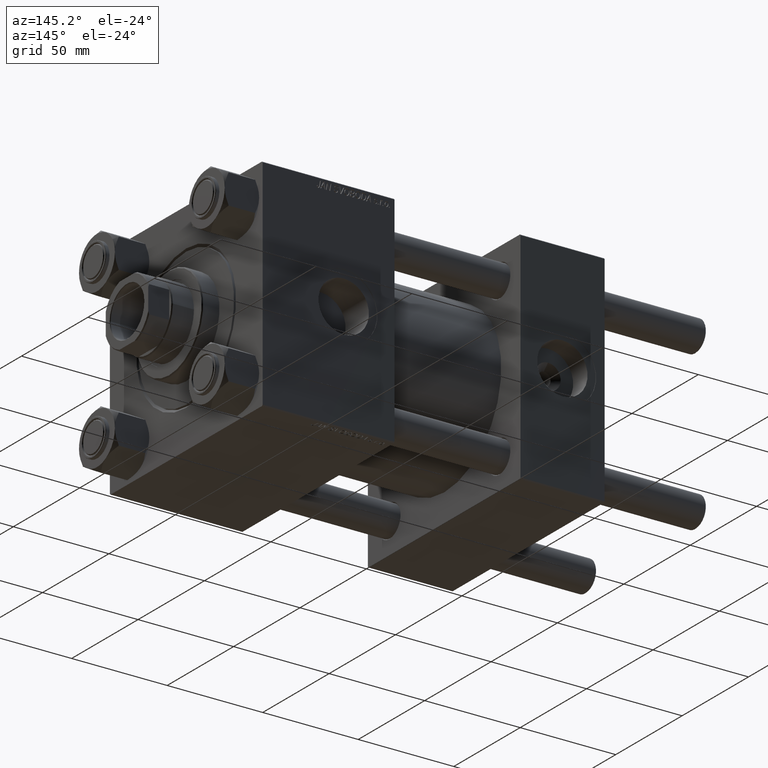
[diagram: clean part render]
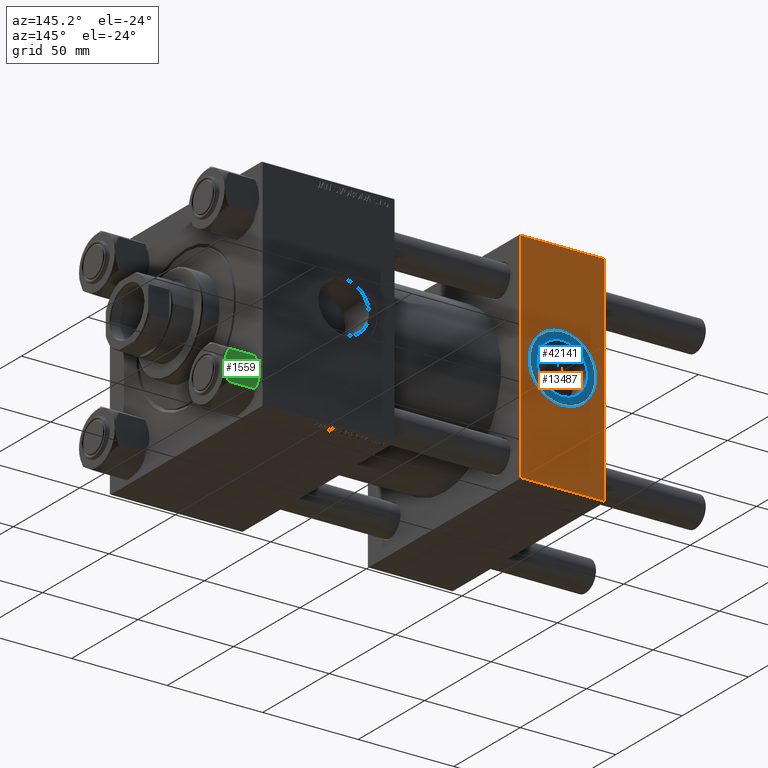
[diagram: same view with three faces highlighted in distinct colors, each labeled with its STEP entity id]
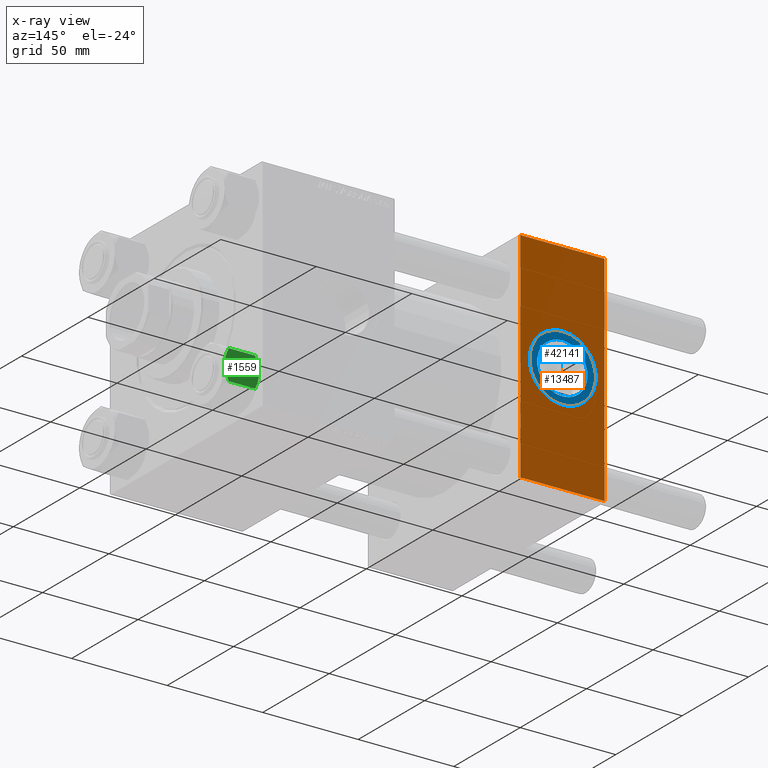
[diagram: x-ray of the same camera — body ghosted, the three highlighted faces saturated]
A machine part, auxiliary view with three faces highlighted in distinct colors.
The next image is the same camera in x-ray (body ghosted, the three faces saturated) — at least one of them is partly hidden behind the body in this view.
Their STEP definitions:

[orange] entity #13487 — the highlighted planar face has unit normal (0, 1, 0).
#1448 = CARTESIAN_POINT ( 'NONE',  ( 44.00000000000000000, 57.49999999999999289, 57.00000000000003553 ) ) ;
#4044 = VERTEX_POINT ( 'NONE', #20174 ) ;
#4495 = VERTEX_POINT ( 'NONE', #31535 ) ;
#4513 = EDGE_LOOP ( 'NONE', ( #37246, #43380, #35196, #29970 ) ) ;
#5715 = CARTESIAN_POINT ( 'NONE',  ( 0.000000000000000000, 57.49999999999999289, 57.50000000000000711 ) ) ;
#5972 = VERTEX_POINT ( 'NONE', #36749 ) ;
#6396 = DIRECTION ( 'NONE',  ( 0.000000000000000000, 1.000000000000000000, 0.000000000000000000 ) ) ;
#6906 = VECTOR ( 'NONE', #20481, 1000.000000000000000 ) ;
#7237 = FACE_BOUND ( 'NONE', #33035, .T. ) ;
#8779 = VECTOR ( 'NONE', #33948, 1000.000000000000000 ) ;
#10498 = CIRCLE ( 'NONE', #41300, 17.50000000000000000 ) ;
#11827 = PLANE ( 'NONE',  #47312 ) ;
#13487 = ADVANCED_FACE ( 'NONE', ( #7237, #38224 ), #11827, .T. ) ;
#13926 = DIRECTION ( 'NONE',  ( 0.000000000000000000, 1.000000000000000000, 0.000000000000000000 ) ) ;
#14295 = CARTESIAN_POINT ( 'NONE',  ( 22.00000000000000000, 57.49999999999999289, 0.000000000000000000 ) ) ;
#15733 = EDGE_CURVE ( 'NONE', #46090, #4044, #23782, .T. ) ;
#17840 = EDGE_CURVE ( 'NONE', #5972, #36426, #25424, .T. ) ;
#18685 = DIRECTION ( 'NONE',  ( 0.000000000000000000, -0.000000000000000000, 1.000000000000000000 ) ) ;
#19737 = CARTESIAN_POINT ( 'NONE',  ( 44.00000000000000000, 57.49999999999999289, 57.50000000000000711 ) ) ;
#20174 = CARTESIAN_POINT ( 'NONE',  ( 0.000000000000000000, 57.49999999999999289, -57.00000000000000711 ) ) ;
#20481 = DIRECTION ( 'NONE',  ( 0.000000000000000000, 0.000000000000000000, -1.000000000000000000 ) ) ;
#20973 = LINE ( 'NONE', #5715, #21126 ) ;
#21126 = VECTOR ( 'NONE', #24795, 1000.000000000000000 ) ;
#21296 = CARTESIAN_POINT ( 'NONE',  ( 44.00000000000000000, 57.49999999999999289, -57.00000000000000711 ) ) ;
#23782 = LINE ( 'NONE', #27100, #41571 ) ;
#24045 = EDGE_CURVE ( 'NONE', #30013, #46090, #46880, .T. ) ;
#24795 = DIRECTION ( 'NONE',  ( 0.000000000000000000, 0.000000000000000000, -1.000000000000000000 ) ) ;
#25424 = CIRCLE ( 'NONE', #29469, 17.50000000000000000 ) ;
#27100 = CARTESIAN_POINT ( 'NONE',  ( 44.00000000000000000, 57.49999999999999289, -57.00000000000000711 ) ) ;
#27324 = CARTESIAN_POINT ( 'NONE',  ( 44.00000000000000000, 57.49999999999999289, 57.50000000000000711 ) ) ;
#27571 = DIRECTION ( 'NONE',  ( -0.000000000000000000, 1.000000000000000000, 0.000000000000000000 ) ) ;
#29401 = DIRECTION ( 'NONE',  ( 0.000000000000000000, 0.000000000000000000, 1.000000000000000000 ) ) ;
#29469 = AXIS2_PLACEMENT_3D ( 'NONE', #14295, #6396, #30276 ) ;
#29970 = ORIENTED_EDGE ( 'NONE', *, *, #34850, .T. ) ;
#30013 = VERTEX_POINT ( 'NONE', #1448 ) ;
#30276 = DIRECTION ( 'NONE',  ( 0.000000000000000000, 0.000000000000000000, 1.000000000000000000 ) ) ;
#31535 = CARTESIAN_POINT ( 'NONE',  ( 0.000000000000000000, 57.49999999999999289, 57.00000000000003553 ) ) ;
#33035 = EDGE_LOOP ( 'NONE', ( #40520, #38210 ) ) ;
#33948 = DIRECTION ( 'NONE',  ( 1.000000000000000000, 0.000000000000000000, 0.000000000000000000 ) ) ;
#34850 = EDGE_CURVE ( 'NONE', #4495, #30013, #41309, .T. ) ;
#35196 = ORIENTED_EDGE ( 'NONE', *, *, #39901, .F. ) ;
#36426 = VERTEX_POINT ( 'NONE', #38403 ) ;
#36749 = CARTESIAN_POINT ( 'NONE',  ( 22.00000000000000355, 57.49999999999999289, -17.50000000000000000 ) ) ;
#37246 = ORIENTED_EDGE ( 'NONE', *, *, #24045, .T. ) ;
#37603 = EDGE_CURVE ( 'NONE', #36426, #5972, #10498, .T. ) ;
#38210 = ORIENTED_EDGE ( 'NONE', *, *, #17840, .F. ) ;
#38224 = FACE_OUTER_BOUND ( 'NONE', #4513, .T. ) ;
#38403 = CARTESIAN_POINT ( 'NONE',  ( 22.00000000000000000, 57.49999999999999289, 17.50000000000000000 ) ) ;
#39261 = DIRECTION ( 'NONE',  ( -1.000000000000000000, 0.000000000000000000, 0.000000000000000000 ) ) ;
#39901 = EDGE_CURVE ( 'NONE', #4495, #4044, #20973, .T. ) ;
#40520 = ORIENTED_EDGE ( 'NONE', *, *, #37603, .F. ) ;
#41300 = AXIS2_PLACEMENT_3D ( 'NONE', #44889, #13926, #29401 ) ;
#41309 = LINE ( 'NONE', #41561, #8779 ) ;
#41561 = CARTESIAN_POINT ( 'NONE',  ( 44.00000000000000000, 57.49999999999999289, 57.00000000000003553 ) ) ;
#41571 = VECTOR ( 'NONE', #39261, 1000.000000000000000 ) ;
#43380 = ORIENTED_EDGE ( 'NONE', *, *, #15733, .T. ) ;
#44889 = CARTESIAN_POINT ( 'NONE',  ( 22.00000000000000000, 57.49999999999999289, 0.000000000000000000 ) ) ;
#46090 = VERTEX_POINT ( 'NONE', #21296 ) ;
#46880 = LINE ( 'NONE', #19737, #6906 ) ;
#47312 = AXIS2_PLACEMENT_3D ( 'NONE', #27324, #27571, #18685 ) ;

[blue] entity #42141 — the highlighted planar face has unit normal (0, 1, 0).
#588 = VERTEX_POINT ( 'NONE', #9641 ) ;
#1500 = VERTEX_POINT ( 'NONE', #20336 ) ;
#2759 = DIRECTION ( 'NONE',  ( 0.000000000000000000, 0.000000000000000000, 1.000000000000000000 ) ) ;
#3304 = AXIS2_PLACEMENT_3D ( 'NONE', #37188, #21216, #13844 ) ;
#5212 = DIRECTION ( 'NONE',  ( 0.000000000000000000, 1.000000000000000000, 0.000000000000000000 ) ) ;
#5424 = DIRECTION ( 'NONE',  ( 0.000000000000000000, 0.000000000000000000, 1.000000000000000000 ) ) ;
#5775 = CARTESIAN_POINT ( 'NONE',  ( 22.00000000000000000, 57.29999999999999716, -13.22000000000000419 ) ) ;
#6557 = CARTESIAN_POINT ( 'NONE',  ( 22.00000000000000000, 57.29999999999999716, 0.000000000000000000 ) ) ;
#7333 = EDGE_CURVE ( 'NONE', #1500, #22076, #43843, .T. ) ;
#8386 = EDGE_CURVE ( 'NONE', #588, #21462, #30892, .T. ) ;
#8765 = CARTESIAN_POINT ( 'NONE',  ( 22.00000000000000000, 57.29999999999999716, 0.000000000000000000 ) ) ;
#9641 = CARTESIAN_POINT ( 'NONE',  ( 22.00000000000000000, 57.29999999999999716, 13.22000000000000419 ) ) ;
#10107 = DIRECTION ( 'NONE',  ( 0.000000000000000000, -0.000000000000000000, 1.000000000000000000 ) ) ;
#10511 = ORIENTED_EDGE ( 'NONE', *, *, #41378, .F. ) ;
#10617 = AXIS2_PLACEMENT_3D ( 'NONE', #40006, #5212, #16914 ) ;
#11335 = AXIS2_PLACEMENT_3D ( 'NONE', #21778, #13918, #10107 ) ;
#13844 = DIRECTION ( 'NONE',  ( 0.000000000000000000, 0.000000000000000000, 1.000000000000000000 ) ) ;
#13918 = DIRECTION ( 'NONE',  ( 0.000000000000000000, 1.000000000000000000, 0.000000000000000000 ) ) ;
#16094 = ORIENTED_EDGE ( 'NONE', *, *, #8386, .F. ) ;
#16914 = DIRECTION ( 'NONE',  ( 0.000000000000000000, 0.000000000000000000, 1.000000000000000000 ) ) ;
#20336 = CARTESIAN_POINT ( 'NONE',  ( 22.00000000000000000, 57.29999999999999716, 17.50000000000000000 ) ) ;
#20484 = ORIENTED_EDGE ( 'NONE', *, *, #26715, .T. ) ;
#21216 = DIRECTION ( 'NONE',  ( 0.000000000000000000, 1.000000000000000000, 0.000000000000000000 ) ) ;
#21462 = VERTEX_POINT ( 'NONE', #5775 ) ;
#21778 = CARTESIAN_POINT ( 'NONE',  ( 22.00000000000000000, 57.29999999999999716, 0.000000000000000000 ) ) ;
#22076 = VERTEX_POINT ( 'NONE', #24475 ) ;
#23966 = CIRCLE ( 'NONE', #40265, 17.50000000000000000 ) ;
#24475 = CARTESIAN_POINT ( 'NONE',  ( 22.00000000000000355, 57.29999999999999716, -17.50000000000000000 ) ) ;
#26715 = EDGE_CURVE ( 'NONE', #22076, #1500, #23966, .T. ) ;
#28480 = AXIS2_PLACEMENT_3D ( 'NONE', #8765, #40219, #5424 ) ;
#29431 = DIRECTION ( 'NONE',  ( 0.000000000000000000, 1.000000000000000000, 0.000000000000000000 ) ) ;
#30892 = CIRCLE ( 'NONE', #28480, 13.22000000000000419 ) ;
#33997 = ORIENTED_EDGE ( 'NONE', *, *, #7333, .T. ) ;
#36757 = EDGE_LOOP ( 'NONE', ( #16094, #10511 ) ) ;
#37188 = CARTESIAN_POINT ( 'NONE',  ( 22.00000000000000000, 57.29999999999999716, 0.000000000000000000 ) ) ;
#37359 = CIRCLE ( 'NONE', #10617, 13.22000000000000419 ) ;
#39897 = EDGE_LOOP ( 'NONE', ( #33997, #20484 ) ) ;
#40006 = CARTESIAN_POINT ( 'NONE',  ( 22.00000000000000000, 57.29999999999999716, 0.000000000000000000 ) ) ;
#40219 = DIRECTION ( 'NONE',  ( 0.000000000000000000, 1.000000000000000000, 0.000000000000000000 ) ) ;
#40265 = AXIS2_PLACEMENT_3D ( 'NONE', #6557, #29431, #2759 ) ;
#41378 = EDGE_CURVE ( 'NONE', #21462, #588, #37359, .T. ) ;
#42141 = ADVANCED_FACE ( 'NONE', ( #45124, #45621 ), #48682, .T. ) ;
#43843 = CIRCLE ( 'NONE', #3304, 17.50000000000000000 ) ;
#45124 = FACE_BOUND ( 'NONE', #36757, .T. ) ;
#45621 = FACE_OUTER_BOUND ( 'NONE', #39897, .T. ) ;
#48682 = PLANE ( 'NONE',  #11335 ) ;

[green] entity #1559 — the highlighted planar face has unit normal (-0, -1, 0).
#439 = LINE ( 'NONE', #25298, #16184 ) ;
#609 = CARTESIAN_POINT ( 'NONE',  ( -13.02784502466562877, 4.489744118371585380, -0.1971866459924576653 ) ) ;
#837 = DIRECTION ( 'NONE',  ( -0.4999999999999998335, -0.8660254037844387076, 0.000000000000000000 ) ) ;
#1223 = EDGE_CURVE ( 'NONE', #24738, #12985, #47300, .T. ) ;
#1559 = ADVANCED_FACE ( 'NONE', ( #46987 ), #8909, .F. ) ;
#2927 = CARTESIAN_POINT ( 'NONE',  ( -7.810000000000002274, 13.52731680711293549, -18.00000000000000000 ) ) ;
#3182 = DIRECTION ( 'NONE',  ( -0.000000000000000000, -0.000000000000000000, 1.000000000000000000 ) ) ;
#3392 = EDGE_CURVE ( 'NONE', #26896, #16688, #24980, .T. ) ;
#4872 = CARTESIAN_POINT ( 'NONE',  ( -9.124083218049246824, 11.25125790807802950, -17.05261278537718539 ) ) ;
#5616 = CARTESIAN_POINT ( 'NONE',  ( -7.903528262322684128, 13.36532110482642111, -16.00000000000000000 ) ) ;
#6633 = EDGE_CURVE ( 'NONE', #21914, #40849, #32432, .T. ) ;
#8275 = CARTESIAN_POINT ( 'NONE',  ( -8.502393313253762130, 12.32805640973647954, -1.411989271640067711 ) ) ;
#8839 = CARTESIAN_POINT ( 'NONE',  ( -15.52647173767732269, 0.1619957022865083085, -2.000000000000000000 ) ) ;
#8909 = PLANE ( 'NONE',  #45263 ) ;
#9478 = CARTESIAN_POINT ( 'NONE',  ( -11.71500000000000341, 6.763658403556464194, 0.000000000000000000 ) ) ;
#9882 = CARTESIAN_POINT ( 'NONE',  ( -15.62000000000000277, -9.678749765951853952E-16, -16.00000000000000000 ) ) ;
#10485 = VECTOR ( 'NONE', #36146, 1000.000000000000000 ) ;
#10811 = LINE ( 'NONE', #2927, #26964 ) ;
#11290 = CARTESIAN_POINT ( 'NONE',  ( -15.52647173767732269, 0.1619957022865083085, -16.00000000000000000 ) ) ;
#11331 = CARTESIAN_POINT ( 'NONE',  ( -11.38181071908714870, 7.340759166634867938, -9.266540442962045709E-16 ) ) ;
#12299 = CARTESIAN_POINT ( 'NONE',  ( -13.99051971937273642, 2.822342635978010161, -0.7317196846281152078 ) ) ;
#12985 = VERTEX_POINT ( 'NONE', #35540 ) ;
#13550 = ORIENTED_EDGE ( 'NONE', *, *, #39783, .F. ) ;
#13666 = B_SPLINE_CURVE_WITH_KNOTS ( 'NONE', 3,
 ( #49916, #8275, #15138, #19460, #31133, #27591, #11331, #19965 ),
 .UNSPECIFIED., .F., .F.,
 ( 4, 2, 2, 4 ),
 ( 4.472842641915697111E-07, 0.003945636373369306588, 0.005918230917921864405, 0.007890825462474420487 ),
 .UNSPECIFIED. ) ;
#13943 = DIRECTION ( 'NONE',  ( 0.4999999999999998335, 0.8660254037844387076, 0.000000000000000000 ) ) ;
#15138 = CARTESIAN_POINT ( 'NONE',  ( -9.114548888011791306, 11.26777185211903110, -0.9142282604026947812 ) ) ;
#15186 = EDGE_CURVE ( 'NONE', #12985, #45922, #13666, .T. ) ;
#16081 = CARTESIAN_POINT ( 'NONE',  ( -8.506059550806625680, 12.32170630002229395, -16.56553707812499354 ) ) ;
#16184 = VECTOR ( 'NONE', #44827, 1000.000000000000000 ) ;
#16688 = VERTEX_POINT ( 'NONE', #30324 ) ;
#17000 = ORIENTED_EDGE ( 'NONE', *, *, #1223, .F. ) ;
#17070 = CARTESIAN_POINT ( 'NONE',  ( -11.05297796109638675, 7.910314210667877433, -18.00000000000000000 ) ) ;
#18747 = VERTEX_POINT ( 'NONE', #19348 ) ;
#19348 = CARTESIAN_POINT ( 'NONE',  ( -7.903528262322684128, 13.36532110482642111, -16.00000000000000000 ) ) ;
#19460 = CARTESIAN_POINT ( 'NONE',  ( -10.06459418565412811, 9.622245127110607754, -0.3836066851120605858 ) ) ;
#19965 = CARTESIAN_POINT ( 'NONE',  ( -11.71500000000000341, 6.763658403556464194, 0.000000000000000000 ) ) ;
#20051 = ORIENTED_EDGE ( 'NONE', *, *, #6633, .F. ) ;
#20414 = CARTESIAN_POINT ( 'NONE',  ( -12.37702203890362895, 5.617002596445053619, -7.928228386300251174E-16 ) ) ;
#20424 = ORIENTED_EDGE ( 'NONE', *, *, #49659, .F. ) ;
#21914 = VERTEX_POINT ( 'NONE', #11290 ) ;
#22080 = CARTESIAN_POINT ( 'NONE',  ( -13.36540581434587338, 3.905071680002323742, -17.61639331488793303 ) ) ;
#22776 = ORIENTED_EDGE ( 'NONE', *, *, #3392, .F. ) ;
#23232 = CARTESIAN_POINT ( 'NONE',  ( -7.810000000000002274, 13.52731680711293549, -16.00000000000000000 ) ) ;
#23945 = CARTESIAN_POINT ( 'NONE',  ( -11.71500000000000341, 6.763658403556464194, -18.00000000000000000 ) ) ;
#23981 = CARTESIAN_POINT ( 'NONE',  ( -15.22736220980735489, 0.6800686015852296373, -1.706311779141443496 ) ) ;
#24226 = CARTESIAN_POINT ( 'NONE',  ( -15.62000000000000277, -9.678749765951853952E-16, -1.999999999999998224 ) ) ;
#24738 = VERTEX_POINT ( 'NONE', #28229 ) ;
#24975 = CARTESIAN_POINT ( 'NONE',  ( -15.52647173767732269, 0.1619957022865083085, -2.000000000000000000 ) ) ;
#24980 = LINE ( 'NONE', #24226, #10485 ) ;
#25298 = CARTESIAN_POINT ( 'NONE',  ( -15.62000000000000277, -9.678749765951853952E-16, -16.00000000000000000 ) ) ;
#26896 = VERTEX_POINT ( 'NONE', #8839 ) ;
#26964 = VECTOR ( 'NONE', #3182, 1000.000000000000000 ) ;
#26994 = LINE ( 'NONE', #46013, #42948 ) ;
#27243 = ORIENTED_EDGE ( 'NONE', *, *, #15186, .F. ) ;
#27591 = CARTESIAN_POINT ( 'NONE',  ( -11.04378428799595291, 7.926238119586001218, -0.05089381635301579859 ) ) ;
#27967 = DIRECTION ( 'NONE',  ( 0.8660254037844387076, -0.4999999999999998335, 0.000000000000000000 ) ) ;
#28229 = CARTESIAN_POINT ( 'NONE',  ( -7.810000000000002274, 13.52731680711293549, -1.999999999999998224 ) ) ;
#28287 = CARTESIAN_POINT ( 'NONE',  ( -14.30591678195076000, 2.276058899034898886, -0.9473872146228137225 ) ) ;
#29119 = CARTESIAN_POINT ( 'NONE',  ( -15.62000000000000277, -9.678749765951853952E-16, -18.00000000000000000 ) ) ;
#29693 = CARTESIAN_POINT ( 'NONE',  ( -12.04818928091285635, 6.186557640478059561, -17.99999999999999289 ) ) ;
#30192 = CARTESIAN_POINT ( 'NONE',  ( -15.52647173767732269, 0.1619957022865083085, -16.00000000000000000 ) ) ;
#30300 = B_SPLINE_CURVE_WITH_KNOTS ( 'NONE', 3,
 ( #9478, #20414, #609, #12299, #28287, #32326, #23981, #24975 ),
 .UNSPECIFIED., .F., .F.,
 ( 4, 2, 2, 4 ),
 ( 0.007890825462474420487, 0.01181022244528553283, 0.01376992093669108727, 0.01572961942809664171 ),
 .UNSPECIFIED. ) ;
#30324 = CARTESIAN_POINT ( 'NONE',  ( -15.62000000000000277, -9.678749765951853952E-16, -1.999999999999998224 ) ) ;
#30445 = CARTESIAN_POINT ( 'NONE',  ( -11.71500000000000341, 6.763658403556464194, -18.00000000000000000 ) ) ;
#31133 = CARTESIAN_POINT ( 'NONE',  ( -10.38662926516872531, 9.064464007571846338, -0.2430846701012981670 ) ) ;
#31450 = EDGE_LOOP ( 'NONE', ( #13550, #34865, #22776, #42112, #27243, #17000, #42132, #40115, #20424, #20051 ) ) ;
#32326 = CARTESIAN_POINT ( 'NONE',  ( -14.92394044919337759, 1.205610507090636219, -1.434462921875002683 ) ) ;
#32432 = B_SPLINE_CURVE_WITH_KNOTS ( 'NONE', 3,
 ( #30192, #33999, #48982, #22080, #49229, #33510, #29693, #40619 ),
 .UNSPECIFIED., .F., .F.,
 ( 4, 2, 2, 4 ),
 ( 4.472842641949058562E-07, 0.003945636373369310924, 0.005918230917921867007, 0.007890825462474422222 ),
 .UNSPECIFIED. ) ;
#32463 = VECTOR ( 'NONE', #13943, 1000.000000000000000 ) ;
#32540 = CARTESIAN_POINT ( 'NONE',  ( -9.439480280627265074, 10.70497417113491601, -17.26828031537188579 ) ) ;
#33510 = CARTESIAN_POINT ( 'NONE',  ( -12.38621571200405569, 5.601078687526927169, -17.94910618364698252 ) ) ;
#33999 = CARTESIAN_POINT ( 'NONE',  ( -14.92760668674625180, 1.199260397376455067, -16.58801072835993295 ) ) ;
#34225 = B_SPLINE_CURVE_WITH_KNOTS ( 'NONE', 3,
 ( #23945, #17070, #35609, #32540, #4872, #16081, #39661, #5616 ),
 .UNSPECIFIED., .F., .F.,
 ( 4, 2, 2, 4 ),
 ( 0.007890825462474422222, 0.01181022244528553283, 0.01376992093669108727, 0.01572961942809664518 ),
 .UNSPECIFIED. ) ;
#34865 = ORIENTED_EDGE ( 'NONE', *, *, #38349, .T. ) ;
#35353 = EDGE_CURVE ( 'NONE', #45922, #26896, #30300, .T. ) ;
#35540 = CARTESIAN_POINT ( 'NONE',  ( -7.903528262322684128, 13.36532110482642111, -2.000000000000000000 ) ) ;
#35609 = CARTESIAN_POINT ( 'NONE',  ( -10.40215497533437627, 9.037572688741338567, -17.80281335400754372 ) ) ;
#36146 = DIRECTION ( 'NONE',  ( -0.4999999999999998335, -0.8660254037844387076, 0.000000000000000000 ) ) ;
#37653 = DIRECTION ( 'NONE',  ( -0.000000000000000000, -0.000000000000000000, 1.000000000000000000 ) ) ;
#37907 = EDGE_CURVE ( 'NONE', #18747, #38090, #439, .T. ) ;
#38090 = VERTEX_POINT ( 'NONE', #23232 ) ;
#38349 = EDGE_CURVE ( 'NONE', #47581, #16688, #26994, .T. ) ;
#39615 = DIRECTION ( 'NONE',  ( 0.4999999999999998335, 0.8660254037844387076, 0.000000000000000000 ) ) ;
#39661 = CARTESIAN_POINT ( 'NONE',  ( -8.202637790192651934, 12.84724820552770197, -16.29368822085855584 ) ) ;
#39783 = EDGE_CURVE ( 'NONE', #47581, #21914, #44657, .T. ) ;
#40115 = ORIENTED_EDGE ( 'NONE', *, *, #37907, .F. ) ;
#40619 = CARTESIAN_POINT ( 'NONE',  ( -11.71500000000000341, 6.763658403556464194, -18.00000000000000000 ) ) ;
#40849 = VERTEX_POINT ( 'NONE', #30445 ) ;
#42112 = ORIENTED_EDGE ( 'NONE', *, *, #35353, .F. ) ;
#42132 = ORIENTED_EDGE ( 'NONE', *, *, #48597, .F. ) ;
#42948 = VECTOR ( 'NONE', #37653, 1000.000000000000000 ) ;
#44201 = CARTESIAN_POINT ( 'NONE',  ( -11.71500000000000341, 6.763658403556464194, 0.000000000000000000 ) ) ;
#44657 = LINE ( 'NONE', #9882, #32463 ) ;
#44827 = DIRECTION ( 'NONE',  ( 0.4999999999999998335, 0.8660254037844387076, 0.000000000000000000 ) ) ;
#45263 = AXIS2_PLACEMENT_3D ( 'NONE', #29119, #27967, #39615 ) ;
#45922 = VERTEX_POINT ( 'NONE', #44201 ) ;
#46013 = CARTESIAN_POINT ( 'NONE',  ( -15.62000000000000277, -9.678749765951853952E-16, -18.00000000000000000 ) ) ;
#46881 = VECTOR ( 'NONE', #837, 1000.000000000000000 ) ;
#46987 = FACE_OUTER_BOUND ( 'NONE', #31450, .T. ) ;
#47300 = LINE ( 'NONE', #48043, #46881 ) ;
#47581 = VERTEX_POINT ( 'NONE', #49630 ) ;
#48043 = CARTESIAN_POINT ( 'NONE',  ( -15.62000000000000277, -9.678749765951853952E-16, -1.999999999999998224 ) ) ;
#48597 = EDGE_CURVE ( 'NONE', #38090, #24738, #10811, .T. ) ;
#48982 = CARTESIAN_POINT ( 'NONE',  ( -14.31545111198821374, 2.259544954993896848, -17.08577173959729834 ) ) ;
#49229 = CARTESIAN_POINT ( 'NONE',  ( -13.04337073483127973, 4.462852799541082938, -17.75691532989869614 ) ) ;
#49630 = CARTESIAN_POINT ( 'NONE',  ( -15.62000000000000277, -9.678749765951853952E-16, -16.00000000000000000 ) ) ;
#49659 = EDGE_CURVE ( 'NONE', #40849, #18747, #34225, .T. ) ;
#49916 = CARTESIAN_POINT ( 'NONE',  ( -7.903528262322684128, 13.36532110482642111, -2.000000000000000000 ) ) ;